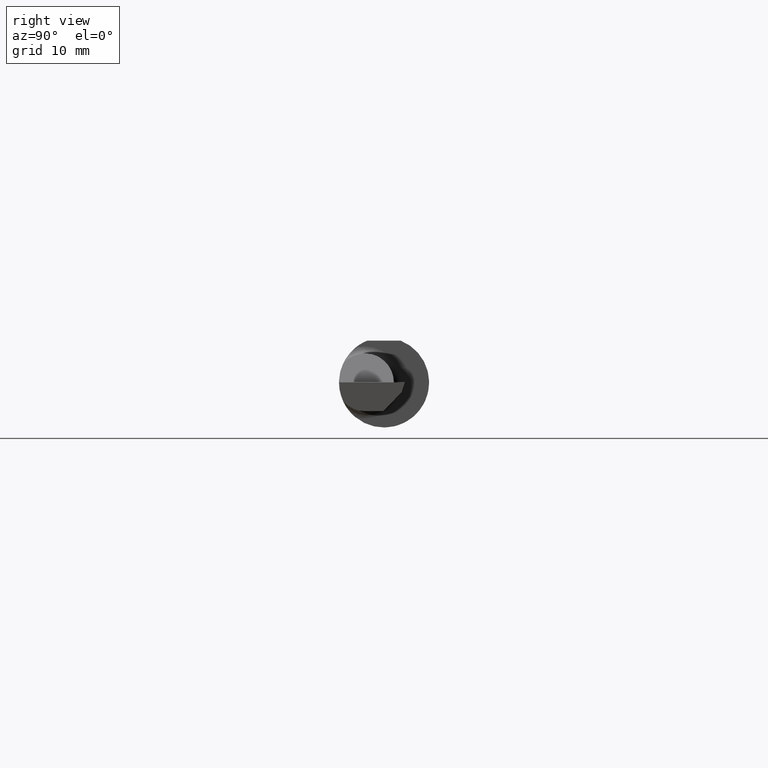
[diagram: clean part render]
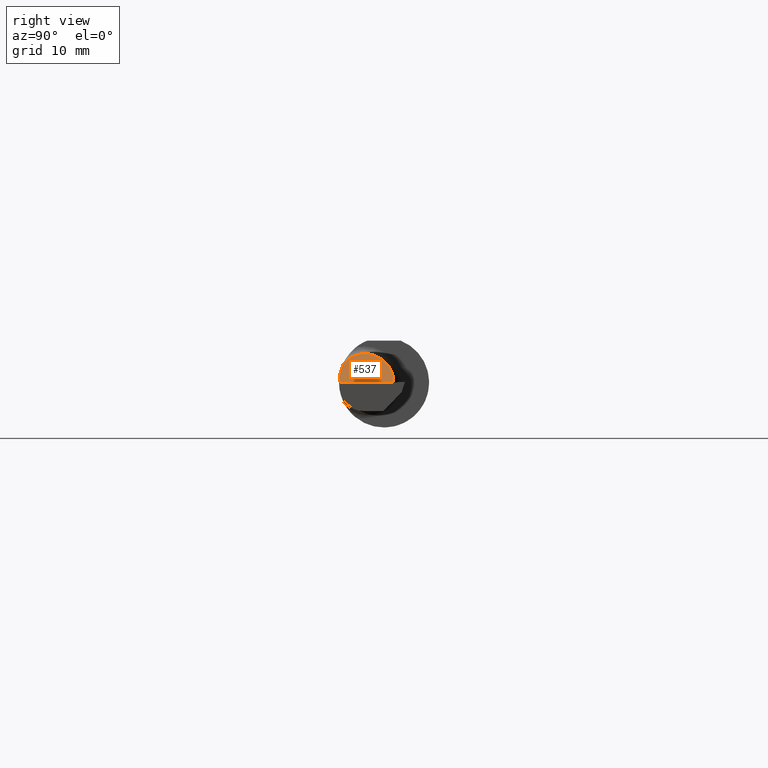
[diagram: same view with one face highlighted and labeled with its STEP entity id]
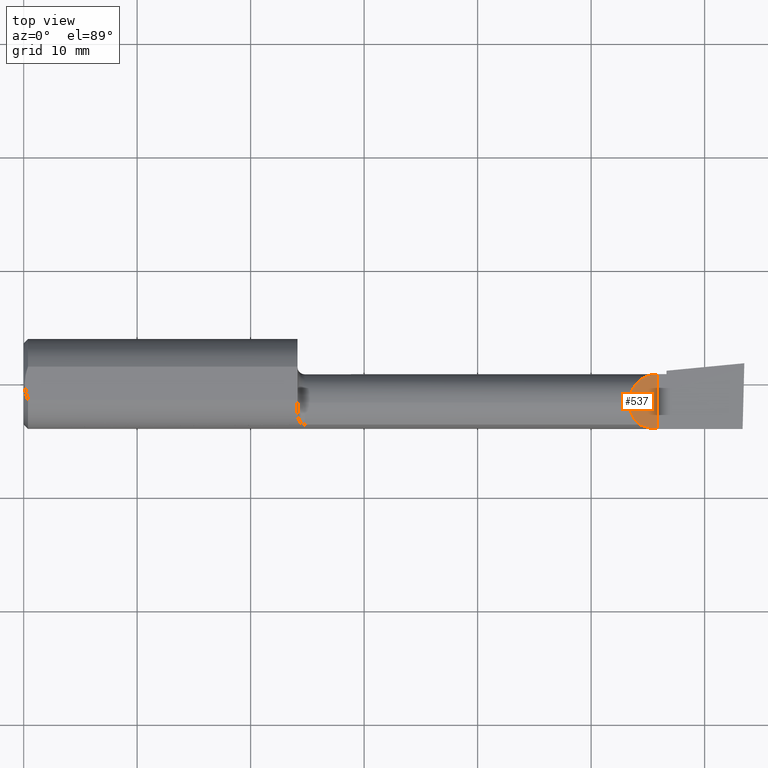
[diagram: same view with one face highlighted and labeled with its STEP entity id]
A machine part, right view. The second image highlights one B-rep face of the part: STEP entity #537.
A second angle (top view) of the same face is appended — the face is thin or edge-on in the first view.
In plain terms, the highlighted planar face has unit normal (-0.7071, 0, -0.7071).
Its self-contained STEP definition (entity closure, byte-faithful):
#28 = ORIENTED_EDGE ( 'NONE', *, *, #177, .F. ) ;
#30 = ORIENTED_EDGE ( 'NONE', *, *, #377, .F. ) ;
#45 = VERTEX_POINT ( 'NONE', #333 ) ;
#67 = CARTESIAN_POINT ( 'NONE',  ( 2.200000000000000178, -0.2500000000000000555, 9.797174393178826150E-17 ) ) ;
#132 = LINE ( 'NONE', #67, #699 ) ;
#143 = EDGE_CURVE ( 'NONE', #176, #640, #514, .T. ) ;
#166 = CARTESIAN_POINT ( 'NONE',  ( 2.200000000000000178, -0.1560999999999999888, 9.797174393178826150E-17 ) ) ;
#176 = VERTEX_POINT ( 'NONE', #578 ) ;
#177 = EDGE_CURVE ( 'NONE', #45, #271, #408, .T. ) ;
#192 = AXIS2_PLACEMENT_3D ( 'NONE', #209, #212, #617 ) ;
#209 = CARTESIAN_POINT ( 'NONE',  ( 2.200000000000000178, -0.2500000000000000555, 9.797174393178826150E-17 ) ) ;
#212 = DIRECTION ( 'NONE',  ( -0.7071067811865436870, 0.000000000000000000, -0.7071067811865513475 ) ) ;
#220 = CARTESIAN_POINT ( 'NONE',  ( 2.135154559332283597, -0.1419939393939393946, 0.06484544066771577575 ) ) ;
#230 = EDGE_CURVE ( 'NONE', #176, #271, #132, .T. ) ;
#235 =( BOUNDED_CURVE ( )  B_SPLINE_CURVE ( 3, ( #251, #487, #491, #255 ),
 .UNSPECIFIED., .F., .T. ) 
 B_SPLINE_CURVE_WITH_KNOTS ( ( 4, 4 ),
 ( 5.418794317430680074, 6.283185307179586232 ),
 .UNSPECIFIED. ) 
 CURVE ( )  GEOMETRIC_REPRESENTATION_ITEM ( )  RATIONAL_B_SPLINE_CURVE ( ( 1.000000000000000000, 0.9386988813357770578, 0.9386988813357770578, 1.000000000000000000 ) ) 
 REPRESENTATION_ITEM ( '' )  );
#251 = CARTESIAN_POINT ( 'NONE',  ( 2.135154559332283597, -0.1419939393939393946, 0.06484544066771577575 ) ) ;
#255 = CARTESIAN_POINT ( 'NONE',  ( 2.100099999999998968, -0.06599999999999998923, 0.09989999999999993330 ) ) ;
#271 = VERTEX_POINT ( 'NONE', #412 ) ;
#289 = CARTESIAN_POINT ( 'NONE',  ( 2.100099999999998523, -0.007479934881072251331, 0.09989999999999994718 ) ) ;
#333 = CARTESIAN_POINT ( 'NONE',  ( 2.100099999999998968, -0.06599999999999998923, 0.09989999999999993330 ) ) ;
#356 = CARTESIAN_POINT ( 'NONE',  ( 2.100099999999998968, -0.06599999999999998923, 0.09989999999999993330 ) ) ;
#377 = EDGE_CURVE ( 'NONE', #640, #45, #235, .T. ) ;
#394 = CARTESIAN_POINT ( 'NONE',  ( 2.177537118629004453, -0.1560999999999999333, 0.02246288137099517260 ) ) ;
#398 = ORIENTED_EDGE ( 'NONE', *, *, #230, .T. ) ;
#408 =( BOUNDED_CURVE ( )  B_SPLINE_CURVE ( 3, ( #356, #289, #642, #524 ),
 .UNSPECIFIED., .F., .T. ) 
 B_SPLINE_CURVE_WITH_KNOTS ( ( 4, 4 ),
 ( 0.000000000000000000, 1.570796326794896114 ),
 .UNSPECIFIED. ) 
 CURVE ( )  GEOMETRIC_REPRESENTATION_ITEM ( )  RATIONAL_B_SPLINE_CURVE ( ( 1.000000000000000000, 0.8047378541243650485, 0.8047378541243650485, 1.000000000000000000 ) ) 
 REPRESENTATION_ITEM ( '' )  );
#412 = CARTESIAN_POINT ( 'NONE',  ( 2.200000000000000178, 0.03389999999999990937, 9.797174393178826150E-17 ) ) ;
#487 = CARTESIAN_POINT ( 'NONE',  ( 2.112547924827749668, -0.1227037540429563728, 0.08745207517224930227 ) ) ;
#491 = CARTESIAN_POINT ( 'NONE',  ( 2.100099999999998968, -0.09571819601686555601, 0.09989999999999997493 ) ) ;
#500 = FACE_OUTER_BOUND ( 'NONE', #525, .T. ) ;
#514 =( BOUNDED_CURVE ( )  B_SPLINE_CURVE ( 3, ( #166, #394, #621, #220 ),
 .UNSPECIFIED., .F., .T. ) 
 B_SPLINE_CURVE_WITH_KNOTS ( ( 4, 4 ),
 ( 4.712388980384689674, 5.140782042693055054 ),
 .UNSPECIFIED. ) 
 CURVE ( )  GEOMETRIC_REPRESENTATION_ITEM ( )  RATIONAL_B_SPLINE_CURVE ( ( 1.000000000000000000, 0.9847649979006014576, 0.9847649979006014576, 1.000000000000000000 ) ) 
 REPRESENTATION_ITEM ( '' )  );
#524 = CARTESIAN_POINT ( 'NONE',  ( 2.200000000000000178, 0.03389999999999990937, 9.797174393178826150E-17 ) ) ;
#525 = EDGE_LOOP ( 'NONE', ( #30, #543, #398, #28 ) ) ;
#537 = ADVANCED_FACE ( 'NONE', ( #500 ), #667, .F. ) ;
#543 = ORIENTED_EDGE ( 'NONE', *, *, #143, .F. ) ;
#578 = CARTESIAN_POINT ( 'NONE',  ( 2.200000000000000178, -0.1560999999999999888, 9.797174393178826150E-17 ) ) ;
#617 = DIRECTION ( 'NONE',  ( -0.7071067811865513475, 0.000000000000000000, 0.7071067811865436870 ) ) ;
#621 = CARTESIAN_POINT ( 'NONE',  ( 2.155587570325277369, -0.1513252362624134817, 0.04441242967472187192 ) ) ;
#630 = DIRECTION ( 'NONE',  ( -0.000000000000000000, 1.000000000000000000, -0.000000000000000000 ) ) ;
#640 = VERTEX_POINT ( 'NONE', #689 ) ;
#642 = CARTESIAN_POINT ( 'NONE',  ( 2.141479934881071578, 0.03389999999999989549, 0.05852006511892780122 ) ) ;
#667 = PLANE ( 'NONE',  #192 ) ;
#689 = CARTESIAN_POINT ( 'NONE',  ( 2.135154559332283597, -0.1419939393939393946, 0.06484544066771577575 ) ) ;
#699 = VECTOR ( 'NONE', #630, 39.37007874015748143 ) ;